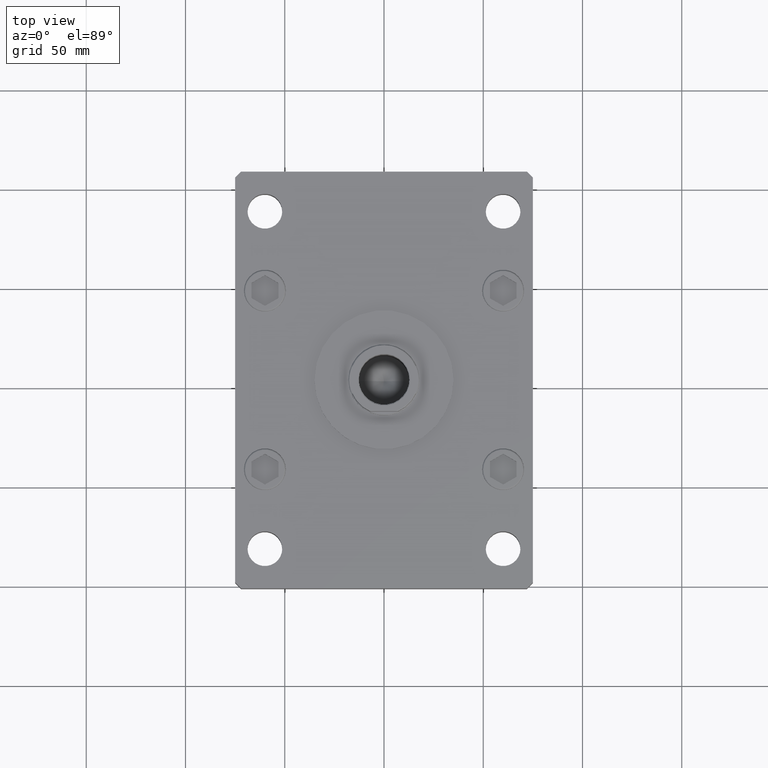
[diagram: clean part render]
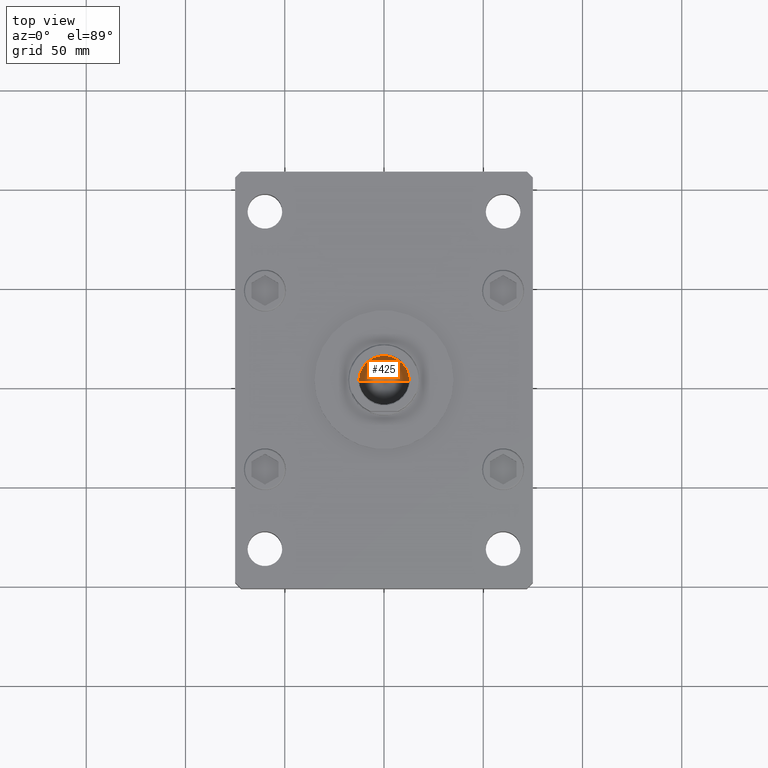
[diagram: same view with one face highlighted and labeled with its STEP entity id]
A machine part, top view. The second image highlights one B-rep face of the part: STEP entity #425.
In plain terms, the highlighted conical surface has half-angle 59 deg.
Its self-contained STEP definition (entity closure, byte-faithful):
#425 = ADVANCED_FACE ( 'NONE', ( #21274 ), #20124, .F. ) ;
#557 = EDGE_CURVE ( 'NONE', #31818, #23234, #37322, .T. ) ;
#2962 = AXIS2_PLACEMENT_3D ( 'NONE', #40551, #12033, #33260 ) ;
#5412 = DIRECTION ( 'NONE',  ( -0.000000000000000000, -0.000000000000000000, 1.000000000000000000 ) ) ;
#7280 = ORIENTED_EDGE ( 'NONE', *, *, #557, .T. ) ;
#10459 = CARTESIAN_POINT ( 'NONE',  ( -1.307202896762960287E-14, 0.000000000000000000, 176.8390271073986355 ) ) ;
#10778 = DIRECTION ( 'NONE',  ( 0.8571673007021125557, 0.000000000000000000, 0.5150380749100536004 ) ) ;
#11820 = CARTESIAN_POINT ( 'NONE',  ( -12.74999999999999112, 1.561424668912874125E-15, 184.5000000000000000 ) ) ;
#12033 = DIRECTION ( 'NONE',  ( -0.000000000000000000, -0.000000000000000000, 1.000000000000000000 ) ) ;
#12944 = CARTESIAN_POINT ( 'NONE',  ( 0.000000000000000000, 0.000000000000000000, 184.5000000000000000 ) ) ;
#15108 = CARTESIAN_POINT ( 'NONE',  ( -12.74999999999999112, 1.561424668912874125E-15, 184.5000000000000000 ) ) ;
#20124 = CONICAL_SURFACE ( 'NONE', #43307, 12.74999999999999112, 1.029744258676655200 ) ;
#21274 = FACE_OUTER_BOUND ( 'NONE', #51369, .T. ) ;
#23146 = EDGE_CURVE ( 'NONE', #39571, #23234, #30451, .T. ) ;
#23234 = VERTEX_POINT ( 'NONE', #11820 ) ;
#23988 = EDGE_CURVE ( 'NONE', #39571, #31818, #30417, .T. ) ;
#24143 = VECTOR ( 'NONE', #10778, 1000.000000000000114 ) ;
#27654 = CARTESIAN_POINT ( 'NONE',  ( 12.74999999999999112, 0.000000000000000000, 184.5000000000000000 ) ) ;
#30417 = LINE ( 'NONE', #38745, #24143 ) ;
#30451 = LINE ( 'NONE', #15108, #48140 ) ;
#31818 = VERTEX_POINT ( 'NONE', #27654 ) ;
#33260 = DIRECTION ( 'NONE',  ( 1.000000000000000000, 0.000000000000000000, 0.000000000000000000 ) ) ;
#34181 = DIRECTION ( 'NONE',  ( 1.000000000000000000, 0.000000000000000000, 0.000000000000000000 ) ) ;
#37322 = CIRCLE ( 'NONE', #2962, 12.74999999999999112 ) ;
#38745 = CARTESIAN_POINT ( 'NONE',  ( 12.74999999999999112, 0.000000000000000000, 184.5000000000000000 ) ) ;
#39571 = VERTEX_POINT ( 'NONE', #10459 ) ;
#40551 = CARTESIAN_POINT ( 'NONE',  ( 0.000000000000000000, 0.000000000000000000, 184.5000000000000000 ) ) ;
#42026 = ORIENTED_EDGE ( 'NONE', *, *, #23146, .F. ) ;
#43169 = ORIENTED_EDGE ( 'NONE', *, *, #23988, .T. ) ;
#43307 = AXIS2_PLACEMENT_3D ( 'NONE', #12944, #5412, #34181 ) ;
#48140 = VECTOR ( 'NONE', #51178, 1000.000000000000114 ) ;
#51178 = DIRECTION ( 'NONE',  ( -0.8571673007021125557, 1.049727191138618942E-16, 0.5150380749100536004 ) ) ;
#51369 = EDGE_LOOP ( 'NONE', ( #42026, #43169, #7280 ) ) ;